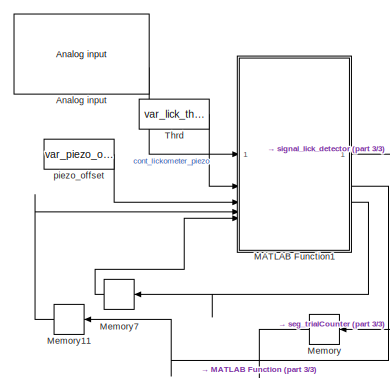
[diagram: root canvas - part 1/3, top left region]
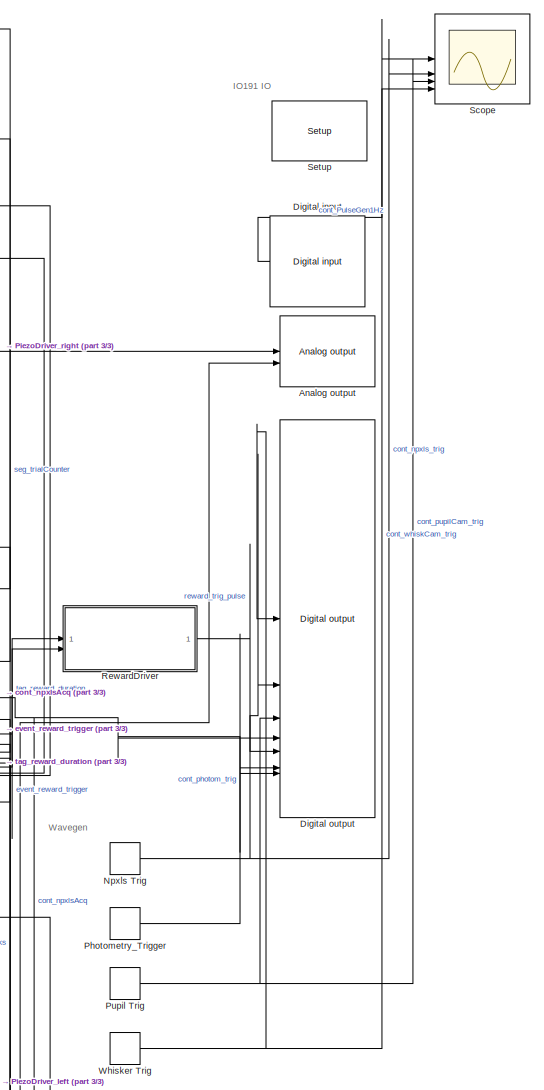
[diagram: root canvas - part 2/3, middle right region]
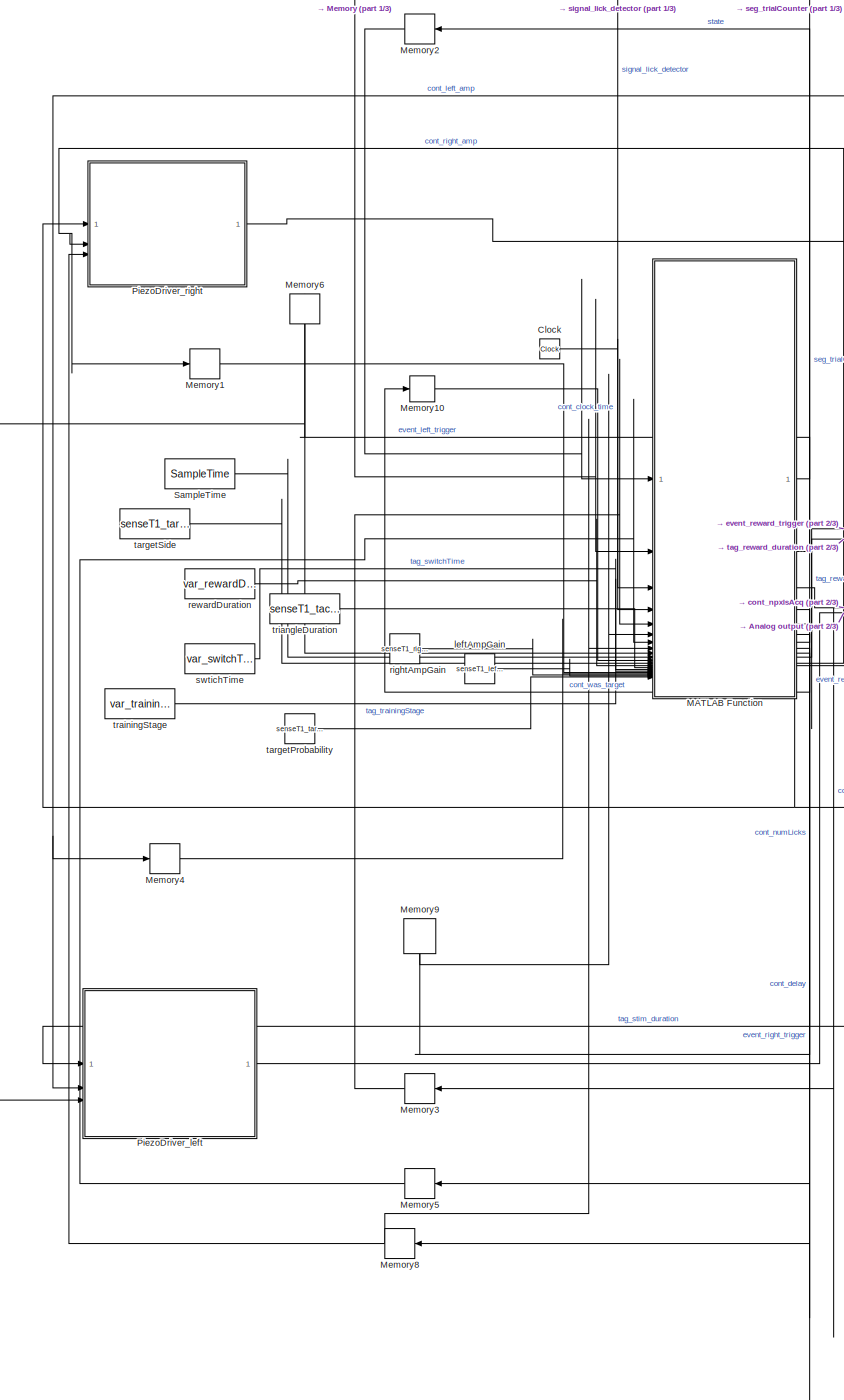
[diagram: root canvas - part 3/3, center side, full height]
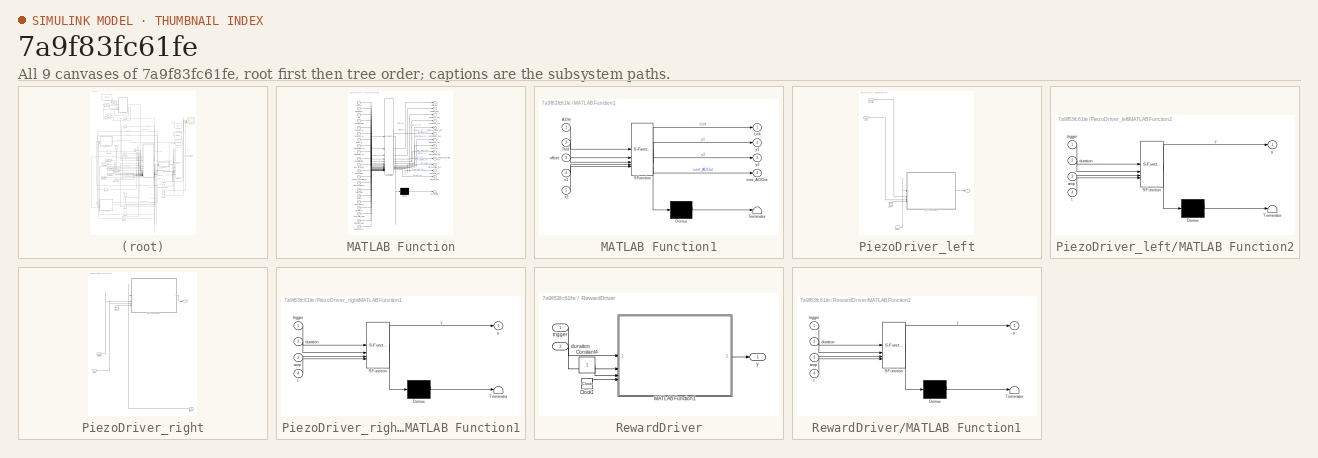
[diagram: thumbnail index - all 9 canvases of the model, root first then tree order]
MODEL slx_7a9f83fc61fe
KIND model
CONFIG AbsTol = auto
CONFIG EnableMultiTasking = off
CONFIG FixedStep = auto
CONFIG MaxStep = auto
CONFIG MinStep = auto
CONFIG RelTol = 1e-3
CONFIG SampleTimeConstraint = Unconstrained
CONFIG SolverName = FixedStepAuto
CONFIG StartTime = 0.0
CONFIG StopTime = 10.0
WORKSPACE source: mxarray member
WORKSPACE SampleTime = 0.001
WORKSPACE cameraT1_fs = 10
WORKSPACE cameraT2_fs = 20
WORKSPACE npxlsT1_syncT = 4
WORKSPACE senseT1_leftAmpGain = 1
WORKSPACE senseT1_rightAmpGain = 1
WORKSPACE senseT1_tactileStimRiseTime = 0.1
WORKSPACE senseT1_targetProbability = 0.3
WORKSPACE senseT1_targetSide = 1
WORKSPACE senseT1_triangleAmplitude = 10
WORKSPACE var_lick_threshold = 0.006
WORKSPACE var_piezo_offset = 0.0059
WORKSPACE var_rewardDuration = 0.03
WORKSPACE var_switchTime = 0
WORKSPACE var_trainingStage = 4
BLOCK [Reference] Analog input   REF=speedgoatlib_IO191/Analog input 
  SourceBlock = speedgoatlib_IO191/Analog input
  SourceProductName = IO191
  SourceType = ad_IO191
BLOCK [Reference] Analog output   REF=speedgoatlib_IO191/Analog output 
  SourceBlock = speedgoatlib_IO191/Analog output
  SourceProductName = IO191
  SourceType = da_IO191
BLOCK [Clock] Clock
  Decimation = 1000
BLOCK [Reference] Digital input   REF=speedgoatlib_IO191/Digital input 
  NameLocation = top
  SourceBlock = speedgoatlib_IO191/Digital input
  SourceProductName = IO191
  SourceType = di_IO191
BLOCK [Reference] Digital output   REF=speedgoatlib_IO191/Digital output 
  SourceBlock = speedgoatlib_IO191/Digital output
  SourceProductName = IO191
  SourceType = do_IO191
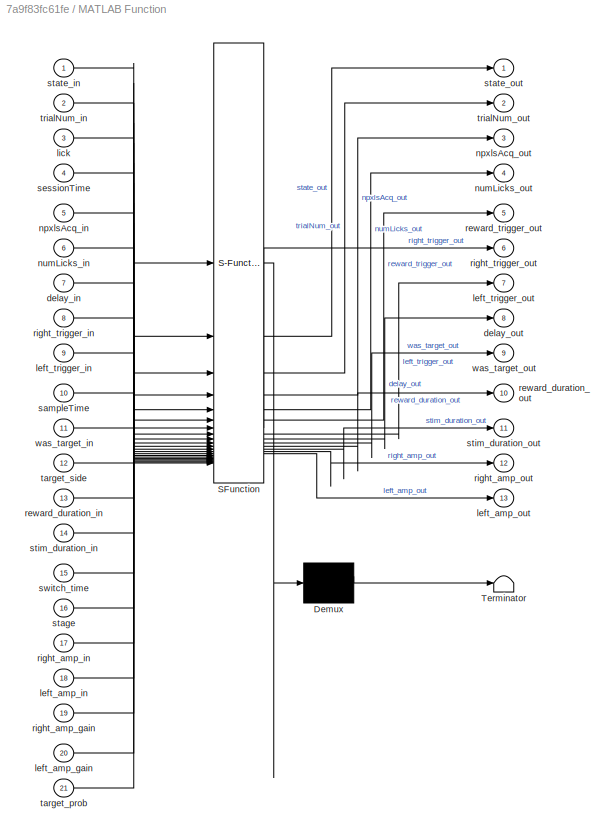
BLOCK [SubSystem] MATLAB Function
  ErrorFcn = Stateflow.Translate.translate
  PermitHierarchicalResolution = ExplicitOnly
  SFBlockType = MATLAB Function
  TreatAsAtomicUnit = on
BLOCK [Demux] MATLAB Function/ Demux 
  Outputs = 1
BLOCK [S-Function] MATLAB Function/ SFunction 
  EnableBusSupport = on
  FunctionName = sf_sfun
  PortCounts = [21 14]
  SFcnIsStateOwnerBlock = off
  SFunctionDeploymentMode = off
  Tag = Stateflow S-Function 1
BLOCK [Terminator] MATLAB Function/ Terminator 
BLOCK [Inport] MATLAB Function/delay_in
  Port = 7
BLOCK [Outport] MATLAB Function/delay_out
  Port = 8
BLOCK [Inport] MATLAB Function/left_amp_gain
  Port = 20
BLOCK [Inport] MATLAB Function/left_amp_in
  Port = 18
BLOCK [Outport] MATLAB Function/left_amp_out
  Port = 13
BLOCK [Inport] MATLAB Function/left_trigger_in
  Port = 9
BLOCK [Outport] MATLAB Function/left_trigger_out
  Port = 7
BLOCK [Inport] MATLAB Function/lick
  Port = 3
BLOCK [Inport] MATLAB Function/npxlsAcq_in
  Port = 5
BLOCK [Outport] MATLAB Function/npxlsAcq_out
  Port = 3
BLOCK [Inport] MATLAB Function/numLicks_in
  Port = 6
BLOCK [Outport] MATLAB Function/numLicks_out
  Port = 4
BLOCK [Inport] MATLAB Function/reward_duration_in
  Port = 13
BLOCK [Outport] MATLAB Function/reward_duration_out
  Port = 10
BLOCK [Outport] MATLAB Function/reward_trigger_out
  Port = 5
BLOCK [Inport] MATLAB Function/right_amp_gain
  Port = 19
BLOCK [Inport] MATLAB Function/right_amp_in
  Port = 17
BLOCK [Outport] MATLAB Function/right_amp_out
  Port = 12
BLOCK [Inport] MATLAB Function/right_trigger_in
  Port = 8
BLOCK [Outport] MATLAB Function/right_trigger_out
  Port = 6
BLOCK [Inport] MATLAB Function/sampleTime
  Port = 10
BLOCK [Inport] MATLAB Function/sessionTime
  Port = 4
BLOCK [Inport] MATLAB Function/stage
  Port = 16
BLOCK [Inport] MATLAB Function/state_in
BLOCK [Outport] MATLAB Function/state_out
BLOCK [Inport] MATLAB Function/stim_duration_in
  Port = 14
BLOCK [Outport] MATLAB Function/stim_duration_out
  Port = 11
BLOCK [Inport] MATLAB Function/switch_time
  Port = 15
BLOCK [Inport] MATLAB Function/target_prob
  Port = 21
BLOCK [Inport] MATLAB Function/target_side
  Port = 12
BLOCK [Inport] MATLAB Function/trialNum_in
  Port = 2
BLOCK [Outport] MATLAB Function/trialNum_out
  Port = 2
BLOCK [Inport] MATLAB Function/was_target_in
  Port = 11
BLOCK [Outport] MATLAB Function/was_target_out
  Port = 9
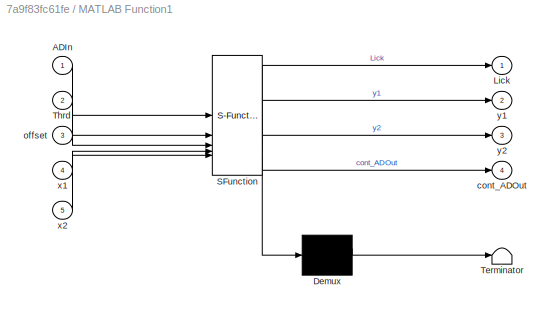
BLOCK [SubSystem] MATLAB Function1
  ErrorFcn = Stateflow.Translate.translate
  LibrarySourceBlock = simulink/User-Defined\nFunctions/MATLAB Function
  PermitHierarchicalResolution = ExplicitOnly
  SFBlockType = MATLAB Function
  TreatAsAtomicUnit = on
BLOCK [Demux] MATLAB Function1/ Demux 
  Outputs = 1
BLOCK [S-Function] MATLAB Function1/ SFunction 
  EnableBusSupport = on
  FunctionName = sf_sfun
  PortCounts = [5 5]
  SFcnIsStateOwnerBlock = off
  SFunctionDeploymentMode = off
  Tag = Stateflow S-Function 6
BLOCK [Terminator] MATLAB Function1/ Terminator 
BLOCK [Inport] MATLAB Function1/ADIn
BLOCK [Outport] MATLAB Function1/Lick
BLOCK [Inport] MATLAB Function1/Thrd
  Port = 2
BLOCK [Outport] MATLAB Function1/cont_ADOut
  Port = 4
BLOCK [Inport] MATLAB Function1/offset
  Port = 3
BLOCK [Inport] MATLAB Function1/x1
  Port = 4
BLOCK [Inport] MATLAB Function1/x2
  Port = 5
BLOCK [Outport] MATLAB Function1/y1
  Port = 2
BLOCK [Outport] MATLAB Function1/y2
  Port = 3
BLOCK [Memory] Memory
  NameLocation = top
BLOCK [Memory] Memory1
BLOCK [Memory] Memory10
BLOCK [Memory] Memory11
BLOCK [Memory] Memory2
  NameLocation = top
BLOCK [Memory] Memory3
  InitialCondition = 1
  NameLocation = top
BLOCK [Memory] Memory4
BLOCK [Memory] Memory5
BLOCK [Memory] Memory6
  NameLocation = right
BLOCK [Memory] Memory7
BLOCK [Memory] Memory8
BLOCK [Memory] Memory9
  NameLocation = left
BLOCK [DiscretePulseGenerator] Npxls Trig
  Amplitude = 2.5
  Period = npxlsT1_syncT
  PulseWidth = npxlsT1_syncT/2
  SampleTime = SampleTime
BLOCK [DiscretePulseGenerator] Photometry_Trigger
  Amplitude = 2.5
  Period = npxlsT1_syncT
  PulseWidth = npxlsT1_syncT/2
  SampleTime = SampleTime
BLOCK [SubSystem] PiezoDriver_left
BLOCK [Clock] PiezoDriver_left/Clock2
BLOCK [SubSystem] PiezoDriver_left/MATLAB Function2
  ErrorFcn = Stateflow.Translate.translate
  LibrarySourceBlock = simulink/User-Defined\nFunctions/MATLAB Function
  PermitHierarchicalResolution = ExplicitOnly
  SFBlockType = MATLAB Function
  TreatAsAtomicUnit = on
BLOCK [Demux] PiezoDriver_left/MATLAB Function2/ Demux 
  Outputs = 1
BLOCK [S-Function] PiezoDriver_left/MATLAB Function2/ SFunction 
  EnableBusSupport = on
  FunctionName = sf_sfun
  PortCounts = [4 2]
  SFcnIsStateOwnerBlock = off
  SFunctionDeploymentMode = off
  Tag = Stateflow S-Function 3
BLOCK [Terminator] PiezoDriver_left/MATLAB Function2/ Terminator 
BLOCK [Inport] PiezoDriver_left/MATLAB Function2/amp
  Port = 3
BLOCK [Inport] PiezoDriver_left/MATLAB Function2/duration
  Port = 2
BLOCK [Inport] PiezoDriver_left/MATLAB Function2/t
  Port = 4
BLOCK [Inport] PiezoDriver_left/MATLAB Function2/trigger
BLOCK [Outport] PiezoDriver_left/MATLAB Function2/y
BLOCK [Inport] PiezoDriver_left/amp
  Port = 2
BLOCK [Inport] PiezoDriver_left/duration
BLOCK [Inport] PiezoDriver_left/trigger
  Port = 3
BLOCK [Outport] PiezoDriver_left/y
BLOCK [SubSystem] PiezoDriver_right
BLOCK [Clock] PiezoDriver_right/Clock1
BLOCK [SubSystem] PiezoDriver_right/MATLAB Function1
  ErrorFcn = Stateflow.Translate.translate
  LibrarySourceBlock = simulink/User-Defined\nFunctions/MATLAB Function
  PermitHierarchicalResolution = ExplicitOnly
  SFBlockType = MATLAB Function
  TreatAsAtomicUnit = on
BLOCK [Demux] PiezoDriver_right/MATLAB Function1/ Demux 
  Outputs = 1
BLOCK [S-Function] PiezoDriver_right/MATLAB Function1/ SFunction 
  EnableBusSupport = on
  FunctionName = sf_sfun
  PortCounts = [4 2]
  SFcnIsStateOwnerBlock = off
  SFunctionDeploymentMode = off
  Tag = Stateflow S-Function 4
BLOCK [Terminator] PiezoDriver_right/MATLAB Function1/ Terminator 
BLOCK [Inport] PiezoDriver_right/MATLAB Function1/amp
  Port = 3
BLOCK [Inport] PiezoDriver_right/MATLAB Function1/duration
  Port = 2
BLOCK [Inport] PiezoDriver_right/MATLAB Function1/t
  Port = 4
BLOCK [Inport] PiezoDriver_right/MATLAB Function1/trigger
BLOCK [Outport] PiezoDriver_right/MATLAB Function1/y
BLOCK [Inport] PiezoDriver_right/amp
  Port = 2
BLOCK [Inport] PiezoDriver_right/duration
BLOCK [Inport] PiezoDriver_right/trigger
  Port = 3
BLOCK [Outport] PiezoDriver_right/y
BLOCK [DiscretePulseGenerator] Pupil Trig
  Period = (1/cameraT1_fs) / SampleTime
  PulseWidth = (1/cameraT1_fs) / SampleTime /2
  SampleTime = SampleTime
BLOCK [SubSystem] RewardDriver
BLOCK [Clock] RewardDriver/Clock1
BLOCK [Constant] RewardDriver/Constant4
  SampleTime = SampleTime
BLOCK [SubSystem] RewardDriver/MATLAB Function1
  ErrorFcn = Stateflow.Translate.translate
  LibrarySourceBlock = simulink/User-Defined\nFunctions/MATLAB Function
  PermitHierarchicalResolution = ExplicitOnly
  SFBlockType = MATLAB Function
  TreatAsAtomicUnit = on
BLOCK [Demux] RewardDriver/MATLAB Function1/ Demux 
  Outputs = 1
BLOCK [S-Function] RewardDriver/MATLAB Function1/ SFunction 
  EnableBusSupport = on
  FunctionName = sf_sfun
  PortCounts = [4 2]
  SFcnIsStateOwnerBlock = off
  SFunctionDeploymentMode = off
  Tag = Stateflow S-Function 5
BLOCK [Terminator] RewardDriver/MATLAB Function1/ Terminator 
BLOCK [Inport] RewardDriver/MATLAB Function1/amp
  Port = 3
BLOCK [Inport] RewardDriver/MATLAB Function1/duration
  Port = 2
BLOCK [Inport] RewardDriver/MATLAB Function1/t
  Port = 4
BLOCK [Inport] RewardDriver/MATLAB Function1/trigger
BLOCK [Outport] RewardDriver/MATLAB Function1/y
BLOCK [Inport] RewardDriver/duration
  Port = 2
BLOCK [Inport] RewardDriver/trigger
BLOCK [Outport] RewardDriver/y
BLOCK [Constant] SampleTime
  SampleTime = SampleTime
  Value = SampleTime
BLOCK [Scope] Scope
  Floating = off
  NumInputPorts = 5
  ScopeSpecificationString = Simulink.scopes.TimeScopeBlockCfg('CurrentConfiguration', extmgr.ConfigurationSet(extmgr.Configuration('Core','General UI',true,'ShowMainToolbar',false,'ShowStatusbar',false),extmgr.Configuration('Core','Source UI',true),extmgr.Configuration('Sources','WiredSimulink',true,'DataLogging',true,'DataLoggingSaveFormat','StructureWithTime','SampleTime','0.001'),extmgr.Configuration('Visuals','Time Domai...<+4054ch>
BLOCK [Reference] Setup   REF=speedgoatlib_IO191/Setup 
  SourceBlock = speedgoatlib_IO191/Setup
  SourceProductName = IO191
  SourceType = setup_IO191
BLOCK [Constant] Thrd
  Value = var_lick_threshold
BLOCK [DiscretePulseGenerator] Whisker Trig
  Period = (1/cameraT2_fs) / SampleTime
  PulseWidth = (1/cameraT2_fs) / SampleTime /2
  SampleTime = SampleTime
BLOCK [Constant] leftAmpGain
  Value = senseT1_leftAmpGain
BLOCK [Constant] piezo_offset
  Value = var_piezo_offset
BLOCK [Constant] rewardDuration
  Value = var_rewardDuration
BLOCK [Constant] rightAmpGain
  Value = senseT1_rightAmpGain
BLOCK [Constant] swtichTime
  Value = var_switchTime
BLOCK [Constant] targetProbability
  Value = senseT1_targetProbability
BLOCK [Constant] targetSide
  Value = senseT1_targetSide
BLOCK [Constant] trainingStage
  Value = var_trainingStage
BLOCK [Constant] triangleDuration
  Value = senseT1_tactileStimRiseTime
ANNOTATION (root): IO191 IO
ANNOTATION (root): Wavegen
LINE Analog input :2 -> MATLAB Function1:1
LINE Clock:1 -> MATLAB Function:4
LINE Digital input :1 -> Scope:5
LINE MATLAB Function1:1 -> MATLAB Function:3
LINE MATLAB Function1:2 -> Memory11:1
LINE MATLAB Function1:3 -> Memory7:1
LINE MATLAB Function:1 -> Memory2:1
LINE MATLAB Function:10 -> RewardDriver:2
NET MATLAB Function:11 -> PiezoDriver_left:1, PiezoDriver_right:1
NET MATLAB Function:12 -> Memory1:1, PiezoDriver_right:2
NET MATLAB Function:13 -> Memory4:1, PiezoDriver_left:2
LINE MATLAB Function:2 -> Memory:1
NET MATLAB Function:3 -> Digital output :4, Digital output :7, Memory3:1
LINE MATLAB Function:4 -> Memory9:1
LINE MATLAB Function:5 -> RewardDriver:1
LINE MATLAB Function:6 -> Memory8:1
LINE MATLAB Function:7 -> Memory6:1
LINE MATLAB Function:8 -> Memory5:1
LINE MATLAB Function:9 -> Memory10:1
LINE Memory10:1 -> MATLAB Function:11
LINE Memory11:1 -> MATLAB Function1:4
LINE Memory1:1 -> MATLAB Function:17
LINE Memory2:1 -> MATLAB Function:1
LINE Memory3:1 -> MATLAB Function:5
LINE Memory4:1 -> MATLAB Function:18
LINE Memory5:1 -> MATLAB Function:7
NET Memory6:1 -> MATLAB Function:9, PiezoDriver_left:3
LINE Memory7:1 -> MATLAB Function1:5
NET Memory8:1 -> MATLAB Function:8, PiezoDriver_right:3
LINE Memory9:1 -> MATLAB Function:6
LINE Memory:1 -> MATLAB Function:2
NET Npxls Trig:1 -> Digital output :2, Scope:2
LINE Photometry_Trigger:1 -> Digital output :8
LINE PiezoDriver_left/Clock2:1 -> PiezoDriver_left/MATLAB Function2:4
LINE PiezoDriver_left/MATLAB Function2:1 -> PiezoDriver_left/y:1
LINE PiezoDriver_left/amp:1 -> PiezoDriver_left/MATLAB Function2:3
LINE PiezoDriver_left/duration:1 -> PiezoDriver_left/MATLAB Function2:2
LINE PiezoDriver_left/trigger:1 -> PiezoDriver_left/MATLAB Function2:1
LINE PiezoDriver_left:1 -> Analog output :2
LINE PiezoDriver_right/Clock1:1 -> PiezoDriver_right/MATLAB Function1:4
LINE PiezoDriver_right/MATLAB Function1:1 -> PiezoDriver_right/y:1
LINE PiezoDriver_right/amp:1 -> PiezoDriver_right/MATLAB Function1:3
LINE PiezoDriver_right/duration:1 -> PiezoDriver_right/MATLAB Function1:2
LINE PiezoDriver_right/trigger:1 -> PiezoDriver_right/MATLAB Function1:1
LINE PiezoDriver_right:1 -> Analog output :1
NET Pupil Trig:1 -> Digital output :3, Scope:3
LINE RewardDriver/Clock1:1 -> RewardDriver/MATLAB Function1:4
LINE RewardDriver/Constant4:1 -> RewardDriver/MATLAB Function1:3
LINE RewardDriver/MATLAB Function1:1 -> RewardDriver/y:1
LINE RewardDriver/duration:1 -> RewardDriver/MATLAB Function1:2
LINE RewardDriver/trigger:1 -> RewardDriver/MATLAB Function1:1
LINE RewardDriver:1 -> Digital output :5
LINE SampleTime:1 -> MATLAB Function:10
LINE Thrd:1 -> MATLAB Function1:2
NET Whisker Trig:1 -> Digital output :1, Scope:1
LINE leftAmpGain:1 -> MATLAB Function:20
LINE piezo_offset:1 -> MATLAB Function1:3
LINE rewardDuration:1 -> MATLAB Function:13
LINE rightAmpGain:1 -> MATLAB Function:19
LINE swtichTime:1 -> MATLAB Function:15
LINE targetProbability:1 -> MATLAB Function:21
LINE targetSide:1 -> MATLAB Function:12
LINE trainingStage:1 -> MATLAB Function:16
LINE triangleDuration:1 -> MATLAB Function:14
note: NET lines group one-source signal fan-out (src -> all destinations, sorted); 1:1 wires keep LINE
CHART PiezoDriver_right/MATLAB Function1 states=1 transitions=1
  STATE_LABEL 'eML_blk_kernel()'
  STATE_LABEL 'SCRIPT:\nfunction y = drivePiezo(trigger, duration, amp, t) \n    % When the trigger is received, drivePiezo starts to output a triangle \n    % wave defined by duration and amplitude\n    \n    % If the trigger is not received, it checks whether t0 is not \n    % empty (indicating that a trigger has been received previously). \n    % If t0 is not empty, it checks if (t - t0) is less than 1.5 seconds. \n ...<+723ch>'
CHART RewardDriver/MATLAB Function1 states=1 transitions=1
  STATE_LABEL 'eML_blk_kernel()'
  STATE_LABEL 'SCRIPT:\nfunction y = driveSpout(trigger, duration, amp, t) \n    % When the trigger is received, driveSpout starts to output a square\n    % pulse defined by duration and amplitude\n    \n    % If the trigger is not received, it checks whether t0 is not \n    % empty (indicating that a trigger has been received previously). \n    % If t0 is not empty, it checks if (t - t0) is less than 1.5 seconds. \n   ...<+500ch>'
CHART MATLAB Function1 states=1 transitions=1
  STATE_LABEL 'eML_blk_kernel()'
  STATE_LABEL 'SCRIPT:\nfunction [Lick, y1, y2, cont_ADOut] = LickDetector(ADIn, Thrd, offset, x1, x2)\n\n    [Lick, y1, y2, cont_ADOut] = detectLicks(ADIn, Thrd, offset, x1, x2);\n\nend'
CHART MATLAB Function states=1 transitions=1
  STATE_LABEL 'eML_blk_kernel()'
  STATE_LABEL 'SCRIPT:\nfunction [state_out, trialNum_out, ...\n    npxlsAcq_out, numLicks_out, reward_trigger_out, ...\n    right_trigger_out, left_trigger_out, delay_out, was_target_out, ... \n    reward_duration_out, stim_duration_out, right_amp_out, left_amp_out] ...\n    = SELECT_DETECT(state_in, trialNum_in, lick, ...\n    sessionTime, npxlsAcq_in, numLicks_in, delay_in, ... \n    right_trigger_in, left_trigger_i...<+982ch>'
CHART PiezoDriver_left/MATLAB Function2 states=1 transitions=1
  STATE_LABEL 'eML_blk_kernel()'
  STATE_LABEL 'SCRIPT:\nfunction y = drivePiezo(trigger, duration, amp, t) \n    % When the trigger is received, drivePiezo starts to output a triangle \n    % wave defined by duration and amplitude\n    \n    % If the trigger is not received, it checks whether t0 is not \n    % empty (indicating that a trigger has been received previously). \n    % If t0 is not empty, it checks if (t - t0) is less than 1.5 seconds. \n ...<+723ch>'
CHART  states=0 transitions=0
CHART  states=0 transitions=0
CHART  states=0 transitions=0
CHART  states=0 transitions=0
CHART  states=0 transitions=0
